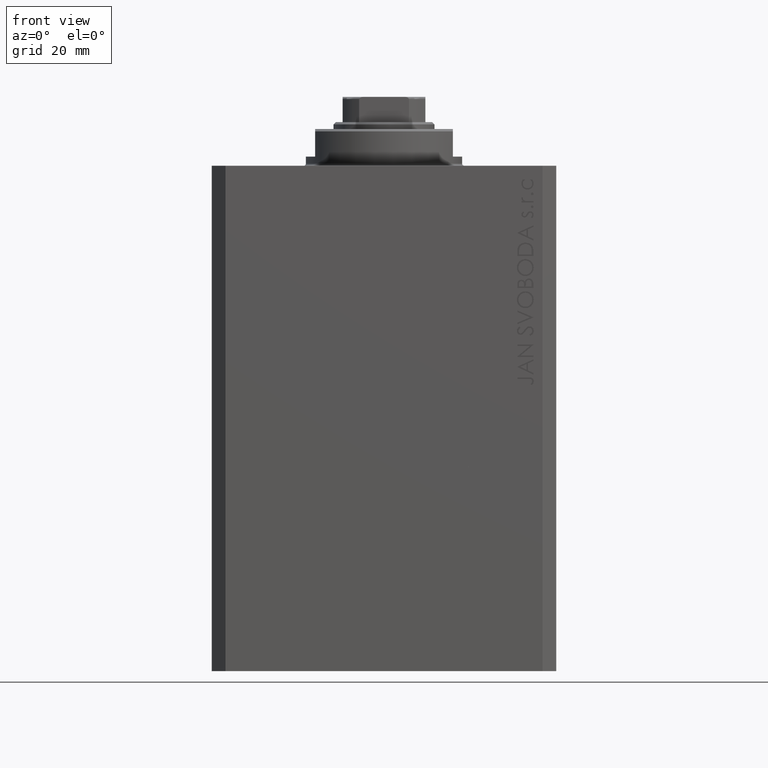
[diagram: clean part render]
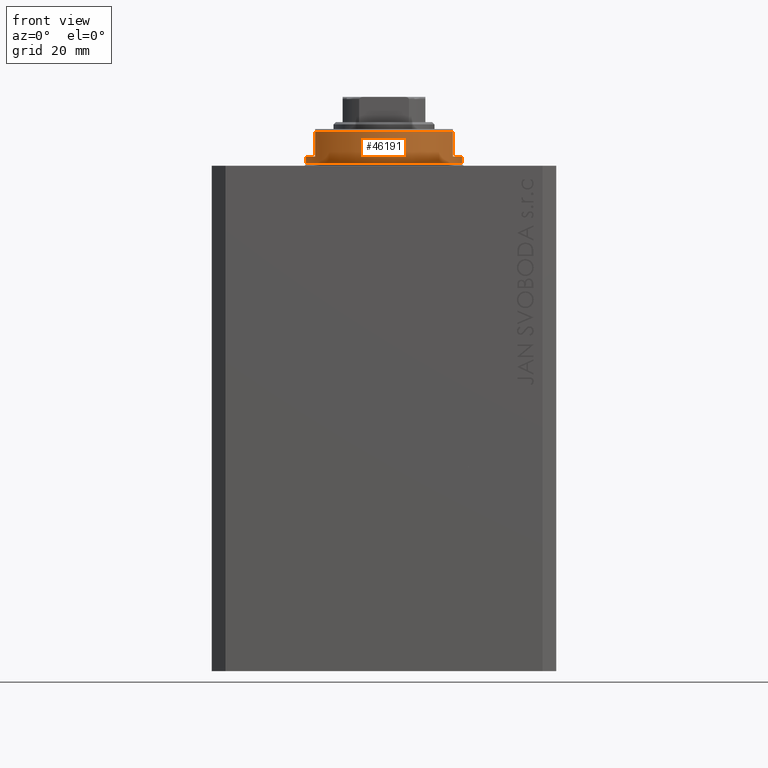
[diagram: same view with one face highlighted and labeled with its STEP entity id]
A machine part, front view. The second image highlights one B-rep face of the part: STEP entity #46191.
In plain terms, the highlighted cylindrical surface (partial cylindrical patch) has radius 17 mm, axis along (0, 0, -1).
Its self-contained STEP definition (entity closure, byte-faithful):
#601 = CYLINDRICAL_SURFACE ( 'NONE', #12708, 17.00000000000000000 ) ;
#1453 = VERTEX_POINT ( 'NONE', #11358 ) ;
#2020 = VECTOR ( 'NONE', #33246, 1000.000000000000000 ) ;
#3367 = CARTESIAN_POINT ( 'NONE',  ( 17.00000000000000000, 0.000000000000000000, -8.000000000000000000 ) ) ;
#4630 = AXIS2_PLACEMENT_3D ( 'NONE', #42876, #46241, #31910 ) ;
#4788 = VERTEX_POINT ( 'NONE', #31701 ) ;
#5088 = CARTESIAN_POINT ( 'NONE',  ( 15.00000000000000000, -8.000000000000001776, -8.000000000000000000 ) ) ;
#5420 = ORIENTED_EDGE ( 'NONE', *, *, #7538, .F. ) ;
#5835 = VERTEX_POINT ( 'NONE', #16197 ) ;
#7347 = CARTESIAN_POINT ( 'NONE',  ( -14.99999999999999645, -8.000000000000003553, -2.000000000000000000 ) ) ;
#7538 = EDGE_CURVE ( 'NONE', #1453, #8943, #41136, .T. ) ;
#8052 = VERTEX_POINT ( 'NONE', #8997 ) ;
#8595 = VECTOR ( 'NONE', #34312, 1000.000000000000000 ) ;
#8671 = CARTESIAN_POINT ( 'NONE',  ( 17.00000000000000000, 0.000000000000000000, -0.5000000000000004441 ) ) ;
#8943 = VERTEX_POINT ( 'NONE', #13740 ) ;
#8997 = CARTESIAN_POINT ( 'NONE',  ( 17.00000000000000000, 0.000000000000000000, -2.000000000000000000 ) ) ;
#11358 = CARTESIAN_POINT ( 'NONE',  ( 14.99999999999999645, -8.000000000000003553, -2.000000000000000000 ) ) ;
#11372 = ORIENTED_EDGE ( 'NONE', *, *, #22470, .F. ) ;
#12708 = AXIS2_PLACEMENT_3D ( 'NONE', #15145, #29723, #44272 ) ;
#13360 = VECTOR ( 'NONE', #16730, 1000.000000000000000 ) ;
#13740 = CARTESIAN_POINT ( 'NONE',  ( 15.00000000000000000, -8.000000000000001776, -7.500000000000007105 ) ) ;
#13970 = DIRECTION ( 'NONE',  ( 1.000000000000000000, 0.000000000000000000, 0.000000000000000000 ) ) ;
#15145 = CARTESIAN_POINT ( 'NONE',  ( 0.000000000000000000, 0.000000000000000000, -8.000000000000000000 ) ) ;
#15324 = LINE ( 'NONE', #18893, #2020 ) ;
#16197 = CARTESIAN_POINT ( 'NONE',  ( -15.00000000000000000, -8.000000000000001776, -7.500000000000007105 ) ) ;
#16374 = DIRECTION ( 'NONE',  ( -1.000000000000000000, 0.000000000000000000, 0.000000000000000000 ) ) ;
#16730 = DIRECTION ( 'NONE',  ( 0.000000000000000000, 0.000000000000000000, -1.000000000000000000 ) ) ;
#16831 = CARTESIAN_POINT ( 'NONE',  ( 0.000000000000000000, 0.000000000000000000, -2.000000000000000000 ) ) ;
#17312 = DIRECTION ( 'NONE',  ( -0.000000000000000000, -0.000000000000000000, -1.000000000000000000 ) ) ;
#17559 = ORIENTED_EDGE ( 'NONE', *, *, #39511, .F. ) ;
#18893 = CARTESIAN_POINT ( 'NONE',  ( -17.00000000000000000, 2.081899558550500280E-15, -8.000000000000000000 ) ) ;
#19720 = LINE ( 'NONE', #44820, #8595 ) ;
#19834 = CIRCLE ( 'NONE', #4630, 17.00000000000000000 ) ;
#20541 = ORIENTED_EDGE ( 'NONE', *, *, #42323, .T. ) ;
#22470 = EDGE_CURVE ( 'NONE', #8052, #1453, #44842, .T. ) ;
#23441 = ORIENTED_EDGE ( 'NONE', *, *, #39517, .T. ) ;
#24365 = CIRCLE ( 'NONE', #28199, 17.00000000000000000 ) ;
#27461 = EDGE_CURVE ( 'NONE', #29480, #27556, #24365, .T. ) ;
#27556 = VERTEX_POINT ( 'NONE', #44301 ) ;
#28058 = AXIS2_PLACEMENT_3D ( 'NONE', #31567, #32052, #39222 ) ;
#28199 = AXIS2_PLACEMENT_3D ( 'NONE', #46711, #17312, #13970 ) ;
#28238 = EDGE_CURVE ( 'NONE', #5835, #8943, #19834, .T. ) ;
#28928 = LINE ( 'NONE', #3367, #46845 ) ;
#28974 = ORIENTED_EDGE ( 'NONE', *, *, #46498, .F. ) ;
#29480 = VERTEX_POINT ( 'NONE', #8671 ) ;
#29723 = DIRECTION ( 'NONE',  ( -0.000000000000000000, -0.000000000000000000, 1.000000000000000000 ) ) ;
#31567 = CARTESIAN_POINT ( 'NONE',  ( 0.000000000000000000, 0.000000000000000000, -2.000000000000000000 ) ) ;
#31701 = CARTESIAN_POINT ( 'NONE',  ( -17.00000000000000000, 2.081899558550500280E-15, -2.000000000000000000 ) ) ;
#31910 = DIRECTION ( 'NONE',  ( -1.000000000000000000, 0.000000000000000000, 0.000000000000000000 ) ) ;
#32052 = DIRECTION ( 'NONE',  ( 0.000000000000000000, 0.000000000000000000, -1.000000000000000000 ) ) ;
#33246 = DIRECTION ( 'NONE',  ( -0.000000000000000000, -0.000000000000000000, 1.000000000000000000 ) ) ;
#33937 = ORIENTED_EDGE ( 'NONE', *, *, #27461, .T. ) ;
#34312 = DIRECTION ( 'NONE',  ( 0.000000000000000000, 0.000000000000000000, -1.000000000000000000 ) ) ;
#36884 = FACE_OUTER_BOUND ( 'NONE', #38190, .T. ) ;
#37585 = AXIS2_PLACEMENT_3D ( 'NONE', #16831, #41919, #16374 ) ;
#37781 = ORIENTED_EDGE ( 'NONE', *, *, #28238, .T. ) ;
#38190 = EDGE_LOOP ( 'NONE', ( #28974, #17559, #23441, #37781, #5420, #11372, #20541, #33937 ) ) ;
#38357 = CIRCLE ( 'NONE', #37585, 17.00000000000000000 ) ;
#39222 = DIRECTION ( 'NONE',  ( -1.000000000000000000, 0.000000000000000000, 0.000000000000000000 ) ) ;
#39511 = EDGE_CURVE ( 'NONE', #46627, #4788, #38357, .T. ) ;
#39517 = EDGE_CURVE ( 'NONE', #46627, #5835, #19720, .T. ) ;
#41136 = LINE ( 'NONE', #5088, #13360 ) ;
#41919 = DIRECTION ( 'NONE',  ( 0.000000000000000000, 0.000000000000000000, -1.000000000000000000 ) ) ;
#42323 = EDGE_CURVE ( 'NONE', #8052, #29480, #28928, .T. ) ;
#42876 = CARTESIAN_POINT ( 'NONE',  ( 0.000000000000000000, 0.000000000000000000, -7.500000000000007105 ) ) ;
#43473 = DIRECTION ( 'NONE',  ( -0.000000000000000000, -0.000000000000000000, 1.000000000000000000 ) ) ;
#44272 = DIRECTION ( 'NONE',  ( 1.000000000000000000, 0.000000000000000000, 0.000000000000000000 ) ) ;
#44301 = CARTESIAN_POINT ( 'NONE',  ( -17.00000000000000000, 2.081899558550500280E-15, -0.5000000000000004441 ) ) ;
#44820 = CARTESIAN_POINT ( 'NONE',  ( -15.00000000000000000, -8.000000000000001776, -8.000000000000000000 ) ) ;
#44842 = CIRCLE ( 'NONE', #28058, 17.00000000000000000 ) ;
#46191 = ADVANCED_FACE ( 'NONE', ( #36884 ), #601, .T. ) ;
#46241 = DIRECTION ( 'NONE',  ( 0.000000000000000000, 0.000000000000000000, 1.000000000000000000 ) ) ;
#46498 = EDGE_CURVE ( 'NONE', #4788, #27556, #15324, .T. ) ;
#46627 = VERTEX_POINT ( 'NONE', #7347 ) ;
#46711 = CARTESIAN_POINT ( 'NONE',  ( 0.000000000000000000, 0.000000000000000000, -0.5000000000000004441 ) ) ;
#46845 = VECTOR ( 'NONE', #43473, 1000.000000000000000 ) ;